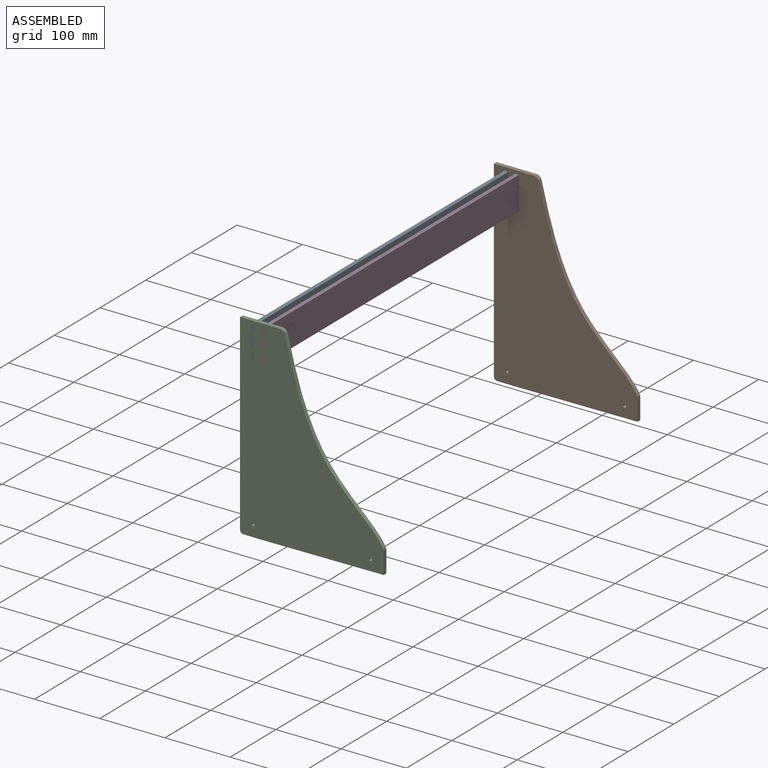
[diagram: assembled view]
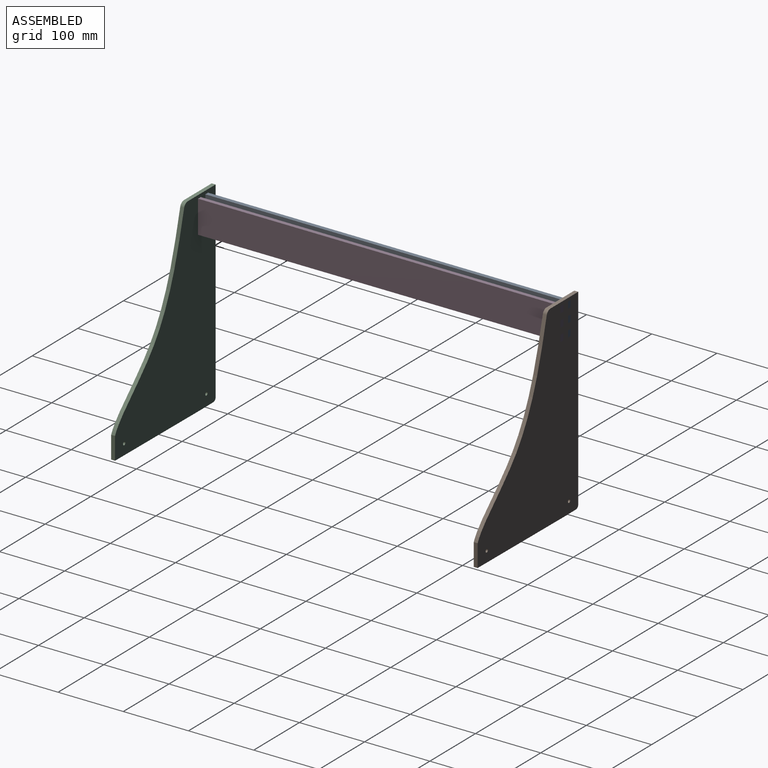
[diagram: assembled view, second angle]
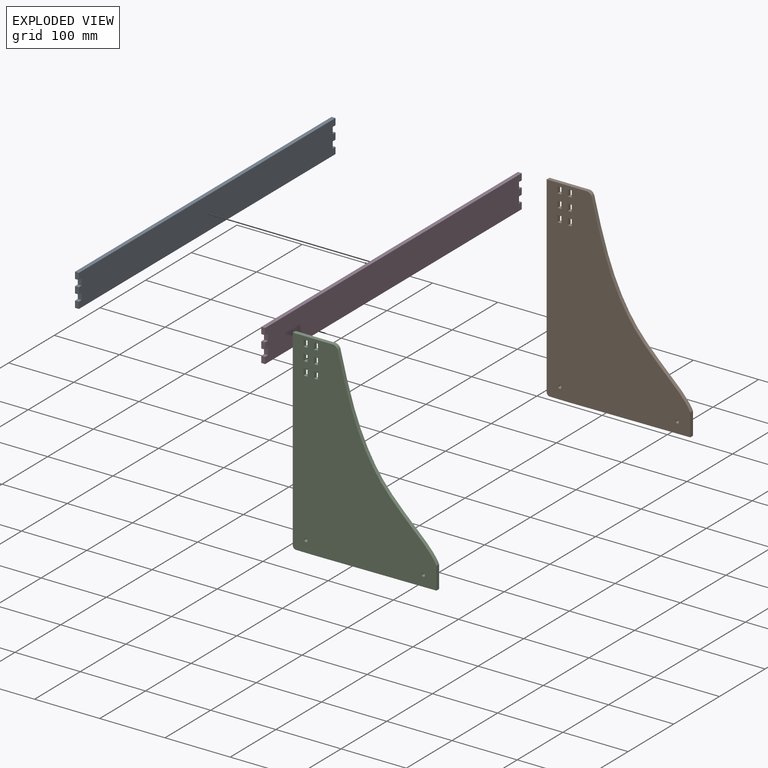
[diagram: exploded view]
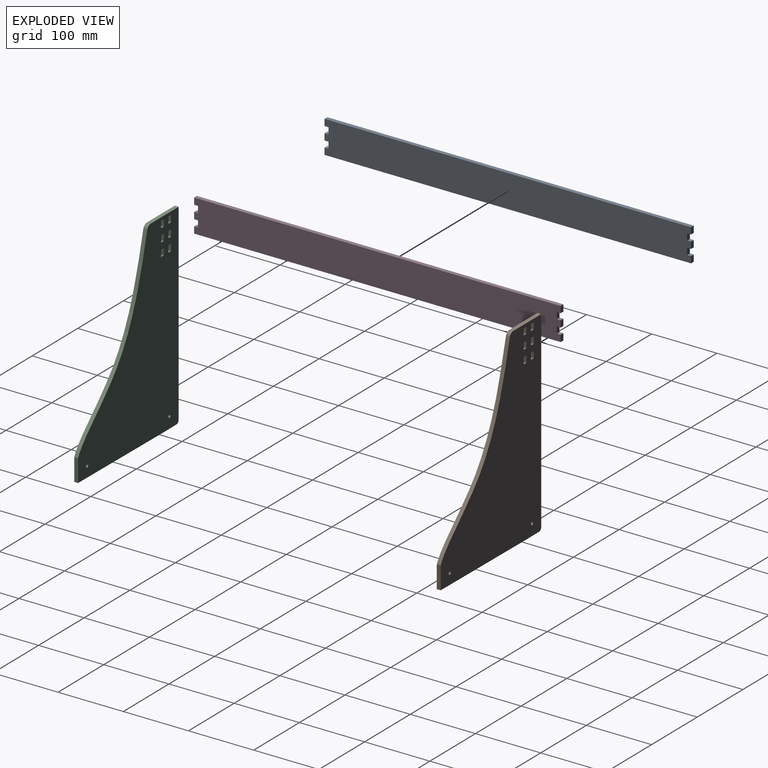
[diagram: exploded view, second angle]
ASSEMBLY  parts=4 mates=2
PART A: 22 faces, bbox 6x562x50 mm
  f0: plane 562x6mm, normal (0,0,1), area 3372mm2, adj f1,f19,f20,f21
  f1: plane 10x6mm, normal (0,-1,0), area 60mm2, adj f0,f2,f20,f21
  f2: plane 6x6mm, normal (0,0,-1), area 36mm2, adj f1,f3,f20,f21
  f3: plane 10x6mm, normal (0,-1,0), area 60mm2, adj f2,f4,f20,f21
  f4: plane 6x6mm, normal (0,0,1), area 36mm2, adj f3,f5,f20,f21
  f5: plane 10x6mm, normal (0,-1,0), area 60mm2, adj f4,f6,f20,f21
  f6: plane 6x6mm, normal (0,0,-1), area 36mm2, adj f5,f7,f20,f21
  f7: plane 10x6mm, normal (0,-1,0), area 60mm2, adj f6,f8,f20,f21
  f8: plane 6x6mm, normal (0,0,1), area 36mm2, adj f7,f9,f20,f21
  f9: plane 10x6mm, normal (0,-1,0), area 60mm2, adj f8,f10,f20,f21
  f10: plane 562x6mm, normal (0,0,-1), area 3372mm2, adj f9,f11,f20,f21
  f11: plane 10x6mm, normal (0,1,0), area 60mm2, adj f10,f12,f20,f21
  f12: plane 6x6mm, normal (0,0,1), area 36mm2, adj f11,f13,f20,f21
  f13: plane 10x6mm, normal (0,1,0), area 60mm2, adj f12,f14,f20,f21
  f14: plane 6x6mm, normal (0,0,-1), area 36mm2, adj f13,f15,f20,f21
  f15: plane 10x6mm, normal (0,1,0), area 60mm2, adj f14,f16,f20,f21
  f16: plane 6x6mm, normal (0,0,1), area 36mm2, adj f15,f17,f20,f21
  f17: plane 10x6mm, normal (0,1,0), area 60mm2, adj f16,f18,f20,f21
  f18: plane 6x6mm, normal (0,0,-1), area 36mm2, adj f17,f19,f20,f21
  f19: plane 10x6mm, normal (0,1,0), area 60mm2, adj f0,f18,f20,f21
  f20: plane 562x50mm, normal (1,0,0), area 27860mm2, adj f0,f1,f2,f3,f4,f5,f6,f7
  f21: plane 562x50mm, normal (-1,0,0), area 27860mm2, adj f0,f1,f2,f3,f4,f5,f6,f7
PART B: 37 faces, bbox 220.2x6x300 mm
  f0: plane 6x6mm, normal (0,0,-1), area 36mm2, adj f1,f34,f35,f36
  f1: plane 10x6mm, normal (-1,0,0), area 60mm2, adj f0,f2,f35,f36
  f2: plane 6x6mm, normal (0,0,1), area 36mm2, adj f1,f34,f35,f36
  f3: plane 6x6mm, normal (0,0,-1), area 36mm2, adj f4,f26,f35,f36
  f4: plane 10x6mm, normal (-1,0,0), area 60mm2, adj f3,f5,f35,f36
  f5: plane 6x6mm, normal (0,0,1), area 36mm2, adj f4,f26,f35,f36
  f6: cylinder r=5mm len=6mm, axis (0,1,0), area 46.9mm2, adj f7,f27,f35,f36
  f7: plane 25.6x6mm, normal (-0.01,0,-1), area 153.6mm2, adj f6,f8,f35,f36
  f8: plane 187.14x6mm, normal (0.01,0,-1), area 1122.9mm2, adj f7,f9,f35,f36
  f9: plane 6x2.5mm, normal (0,0,-1), area 15mm2, adj f8,f10,f35,f36
  f10: plane 34.29x6mm, normal (1,0,0), area 205.8mm2, adj f9,f11,f35,f36
  f11: extruded ~258.25x151.28mm, area 1835.1mm2, adj f10,f12,f35,f36
  f12: cylinder r=8mm len=7.79mm, axis (0,1,0), area 64.4mm2, adj f11,f13,f35,f36
  f13: plane 61.13x6mm, normal (0,0,1), area 366.8mm2, adj f12,f27,f35,f36
  f14: plane 6x6mm, normal (0,0,-1), area 36mm2, adj f15,f30,f35,f36
  f15: plane 10x6mm, normal (-1,0,0), area 60mm2, adj f14,f16,f35,f36
  f16: plane 6x6mm, normal (0,0,1), area 36mm2, adj f15,f30,f35,f36
  f17: plane 10x6mm, normal (1,0,0), area 60mm2, adj f18,f31,f35,f36
  f18: plane 6x6mm, normal (0,0,-1), area 36mm2, adj f17,f19,f35,f36
  f19: plane 10x6mm, normal (-1,0,0), area 60mm2, adj f18,f31,f35,f36
  f20: plane 10x6mm, normal (1,0,0), area 60mm2, adj f21,f32,f35,f36
  f21: plane 6x6mm, normal (0,0,-1), area 36mm2, adj f20,f22,f35,f36
  f22: plane 10x6mm, normal (-1,0,0), area 60mm2, adj f21,f32,f35,f36
  f23: plane 10x6mm, normal (1,0,0), area 60mm2, adj f24,f33,f35,f36
  f24: plane 6x6mm, normal (0,0,-1), area 36mm2, adj f23,f25,f35,f36
  f25: plane 10x6mm, normal (-1,0,0), area 60mm2, adj f24,f33,f35,f36
  f26: plane 10x6mm, normal (1,0,0), area 60mm2, adj f3,f5,f35,f36
  f27: plane 294.81x6mm, normal (-1,0,0), area 1768.8mm2, adj f6,f13,f35,f36
  f28: cylinder r=2.5mm len=6mm, axis (0,1,0), area 94.2mm2, adj f35,f36
  f29: cylinder r=2.5mm len=6mm, axis (0,1,0), area 94.2mm2, adj f35,f36
  f30: plane 10x6mm, normal (1,0,0), area 60mm2, adj f14,f16,f35,f36
  f31: plane 6x6mm, normal (0,0,1), area 36mm2, adj f17,f19,f35,f36
  f32: plane 6x6mm, normal (0,0,1), area 36mm2, adj f20,f22,f35,f36
  f33: plane 6x6mm, normal (0,0,1), area 36mm2, adj f23,f25,f35,f36
  f34: plane 10x6mm, normal (1,0,0), area 60mm2, adj f0,f2,f35,f36
  f35: plane 299.98x220.2mm, normal (0,-1,0), area 40115.8mm2, adj f0,f1,f2,f3,f4,f5,f6,f7
  f36: plane 299.98x220.2mm, normal (0,1,0), area 40115.8mm2, adj f0,f1,f2,f3,f4,f5,f6,f7
PART C: same geometry as B
PART D: same geometry as A
PLACE A t=(-134.41,160.85,-108.52)mm
PLACE B t=(-123.41,441.85,-5.16)mm
PLACE C t=(-123.41,-114.15,-5.16)mm
PLACE D t=(-118.41,160.85,-108.52)mm
MATE planar B.f32 <-> D.f14  axis (0,0,1) through (-115.41,438.85,26.28)mm
MATE planar C.f18 <-> D.f8  axis (0,0,-1) through (-115.41,-117.15,16.28)mm
